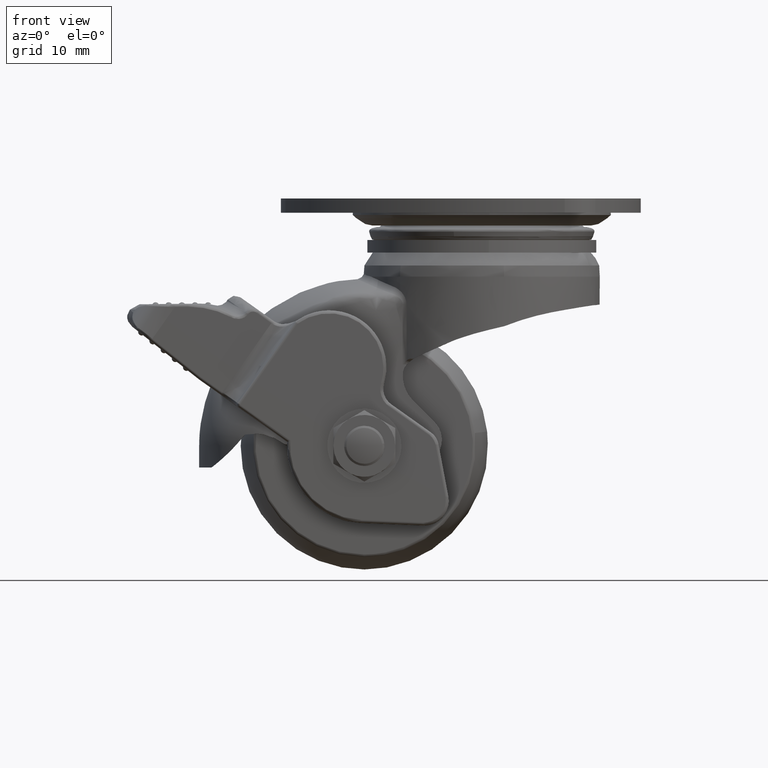
[diagram: clean part render]
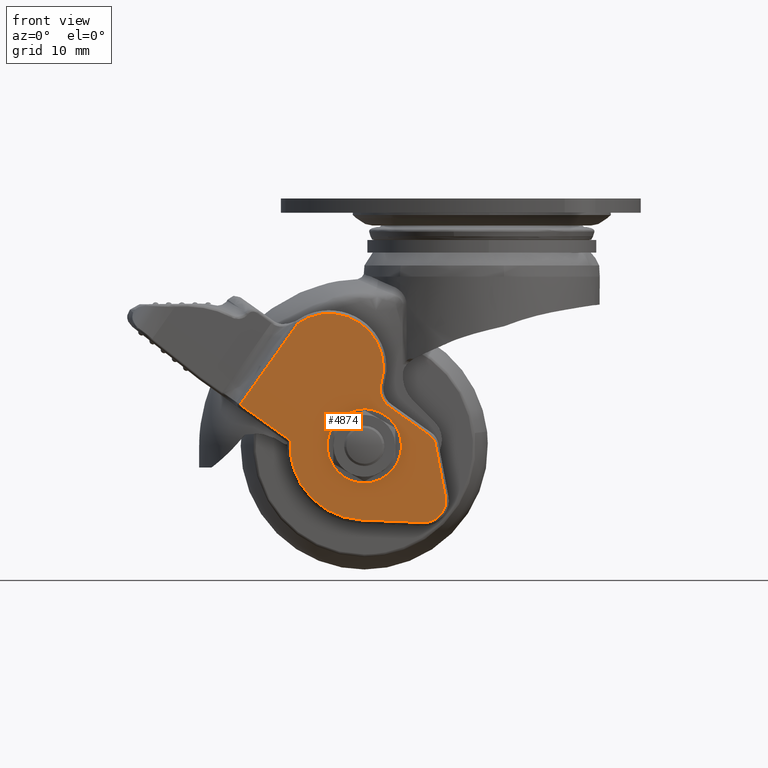
[diagram: same view with one face highlighted and labeled with its STEP entity id]
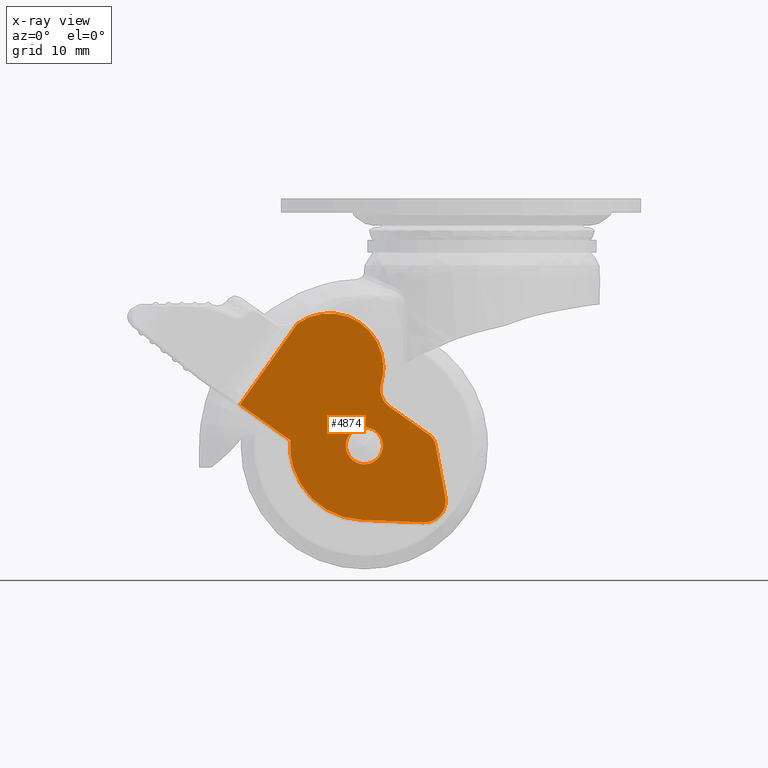
[diagram: x-ray of the same camera — body ghosted, the highlighted face saturated]
A machine part, front view. The second image highlights one B-rep face of the part: STEP entity #4874.
The next image is the same camera in x-ray: the body ghosted, the highlighted face saturated — about 0% of this face is hidden behind the body in this view.
In plain terms, the highlighted face is a freeform B-spline surface patch.
Its self-contained STEP definition (entity closure, byte-faithful):
#62=CARTESIAN_POINT('',(-19.0,-23.100000000000001,-43.0));
#63=VERTEX_POINT('',#62);
#64=CARTESIAN_POINT('',(-16.023201358547450,-23.099999999999991,-40.372384006431837));
#65=VERTEX_POINT('',#64);
#66=CARTESIAN_POINT('',(-19.0,-23.100000000000001,-43.0));
#67=CARTESIAN_POINT('',(-16.351904199894204,-23.099999999999998,-43.0));
#68=CARTESIAN_POINT('',(-16.023201358547446,-23.099999999999994,-40.372384006431837));
#76=(BOUNDED_CURVE()B_SPLINE_CURVE(2,(#66,#67,#68),.UNSPECIFIED.,.F.,.U.)B_SPLINE_CURVE_WITH_KNOTS((3,3),(0.500000000000000,0.728526071007504),.UNSPECIFIED.)CURVE()GEOMETRIC_REPRESENTATION_ITEM()RATIONAL_B_SPLINE_CURVE((1.0,0.732265053919282,0.954005430232424))REPRESENTATION_ITEM(''));
#77=EDGE_CURVE('',#63,#65,#76,.T.);
#118=CARTESIAN_POINT('',(-21.999885769189721,-23.099999999999991,-39.973820393184972));
#119=VERTEX_POINT('',#118);
#125=CARTESIAN_POINT('',(-21.999885769189724,-23.099999999999991,-39.973820393184958));
#126=CARTESIAN_POINT('',(-22.0,-23.099999999999998,-39.986909947217953));
#127=CARTESIAN_POINT('',(-22.0,-23.100000000000001,-40.0));
#128=CARTESIAN_POINT('',(-22.000000000000007,-23.100000000000001,-42.999999999999993));
#129=CARTESIAN_POINT('',(-19.0,-23.100000000000001,-43.0));
#137=(BOUNDED_CURVE()B_SPLINE_CURVE(2,(#125,#126,#127,#128,#129),.UNSPECIFIED.,.F.,.U.)B_SPLINE_CURVE_WITH_KNOTS((3,2,3),(0.248460105627444,0.250000000000000,0.500000000000000),.UNSPECIFIED.)CURVE()GEOMETRIC_REPRESENTATION_ITEM()RATIONAL_B_SPLINE_CURVE((0.996414028013461,0.998195901522358,1.0,0.707106781186548,1.0))REPRESENTATION_ITEM(''));
#138=EDGE_CURVE('',#119,#63,#137,.T.);
#165=CARTESIAN_POINT('',(-19.0,-23.100000000000001,-37.0));
#166=VERTEX_POINT('',#165);
#167=CARTESIAN_POINT('',(-16.023201358547443,-23.099999999999994,-40.372384006431837));
#168=CARTESIAN_POINT('',(-16.000000000000004,-23.099999999999998,-40.186914782795078));
#169=CARTESIAN_POINT('',(-16.0,-23.100000000000001,-40.0));
#170=CARTESIAN_POINT('',(-15.999999999999998,-23.100000000000001,-37.0));
#171=CARTESIAN_POINT('',(-19.0,-23.100000000000001,-37.0));
#179=(BOUNDED_CURVE()B_SPLINE_CURVE(2,(#167,#168,#169,#170,#171),.UNSPECIFIED.,.F.,.U.)B_SPLINE_CURVE_WITH_KNOTS((3,2,3),(0.728526071007504,0.750000000000000,1.0),.UNSPECIFIED.)CURVE()GEOMETRIC_REPRESENTATION_ITEM()RATIONAL_B_SPLINE_CURVE((0.954005430232424,0.974841727267265,1.0,0.707106781186548,1.0))REPRESENTATION_ITEM(''));
#180=EDGE_CURVE('',#65,#166,#179,.T.);
#182=CARTESIAN_POINT('',(-19.0,-23.100000000000001,-37.0));
#183=CARTESIAN_POINT('',(-21.973933631150619,-23.099999999999994,-36.999999999999993));
#184=CARTESIAN_POINT('',(-21.999885769189721,-23.099999999999998,-39.973820393184958));
#192=(BOUNDED_CURVE()B_SPLINE_CURVE(2,(#182,#183,#184),.UNSPECIFIED.,.F.,.U.)B_SPLINE_CURVE_WITH_KNOTS((3,3),(0.0,0.248460105627444),.UNSPECIFIED.)CURVE()GEOMETRIC_REPRESENTATION_ITEM()RATIONAL_B_SPLINE_CURVE((1.0,0.708910879664190,0.996414028013462))REPRESENTATION_ITEM(''));
#193=EDGE_CURVE('',#166,#119,#192,.T.);
#2476=CARTESIAN_POINT('',(-29.828835574889901,-23.100000000000001,-20.268783525676248));
#2477=VERTEX_POINT('',#2476);
#3605=CARTESIAN_POINT('',(-39.101973689525352,-23.100000000000001,-33.347364913410800));
#3606=VERTEX_POINT('',#3605);
#4202=CARTESIAN_POINT('',(-30.967327011338352,-23.100000000000001,-39.115093073234902));
#4203=VERTEX_POINT('',#4202);
#4227=CARTESIAN_POINT('',(-30.967327011338352,-23.100000000000001,-39.115093073234902));
#4228=CARTESIAN_POINT('',(-39.101973689525352,-23.100000000000001,-33.347364913410800));
#4229=QUASI_UNIFORM_CURVE('',1,(#4227,#4228),.UNSPECIFIED.,.F.,.U.);
#4230=EDGE_CURVE('',#4203,#3606,#4229,.T.);
#4253=CARTESIAN_POINT('',(-19.489507180220301,-23.100000000000001,-51.990012162655603));
#4254=VERTEX_POINT('',#4253);
#4270=CARTESIAN_POINT('',(-19.489507180220301,-23.100000000000001,-51.990012162655603));
#4271=CARTESIAN_POINT('',(-24.572241554044265,-23.099999999999998,-51.782502363692352));
#4272=CARTESIAN_POINT('',(-27.957346520457019,-23.100000000000001,-47.985356936152733));
#4273=CARTESIAN_POINT('',(-31.342451486869773,-23.099999999999998,-44.188211508613129));
#4274=CARTESIAN_POINT('',(-30.967327011338341,-23.100000000000001,-39.115093073234902));
#4282=(BOUNDED_CURVE()B_SPLINE_CURVE(2,(#4270,#4271,#4272,#4273,#4274),.UNSPECIFIED.,.F.,.U.)B_SPLINE_CURVE_WITH_KNOTS((3,2,3),(0.0,0.500000000000000,1.0),.UNSPECIFIED.)CURVE()GEOMETRIC_REPRESENTATION_ITEM()RATIONAL_B_SPLINE_CURVE((1.0,0.920690445594447,1.0,0.920690445594447,1.0))REPRESENTATION_ITEM(''));
#4283=EDGE_CURVE('',#4254,#4203,#4282,.T.);
#4324=CARTESIAN_POINT('',(-39.101973689525352,-23.100000000000001,-33.347364913410800));
#4325=CARTESIAN_POINT('',(-29.828835574889901,-23.100000000000001,-20.268783525676248));
#4326=QUASI_UNIFORM_CURVE('',1,(#4324,#4325),.UNSPECIFIED.,.F.,.U.);
#4327=EDGE_CURVE('',#3606,#2477,#4326,.T.);
#4347=CARTESIAN_POINT('',(-9.485375807328280,-23.100000000000001,-52.398443776945598));
#4348=VERTEX_POINT('',#4347);
#4364=CARTESIAN_POINT('',(-9.485375807328280,-23.100000000000001,-52.398443776945598));
#4365=CARTESIAN_POINT('',(-19.489507180220301,-23.100000000000001,-51.990012162655603));
#4366=QUASI_UNIFORM_CURVE('',1,(#4364,#4365),.UNSPECIFIED.,.F.,.U.);
#4367=EDGE_CURVE('',#4348,#4254,#4366,.T.);
#4395=CARTESIAN_POINT('',(-29.795274735589551,-23.100000000000001,-20.244832835231950));
#4396=VERTEX_POINT('',#4395);
#4397=CARTESIAN_POINT('',(-29.828835574889901,-23.100000000000001,-20.268783525676259));
#4398=CARTESIAN_POINT('',(-29.811984618141359,-23.099999999999994,-20.256907020369756));
#4399=CARTESIAN_POINT('',(-29.795274735589530,-23.100000000000001,-20.244832835231978));
#4407=(BOUNDED_CURVE()B_SPLINE_CURVE(2,(#4397,#4398,#4399),.UNSPECIFIED.,.F.,.U.)CURVE()GEOMETRIC_REPRESENTATION_ITEM()QUASI_UNIFORM_CURVE()RATIONAL_B_SPLINE_CURVE((1.0,0.999982653262736,1.0))REPRESENTATION_ITEM(''));
#4408=EDGE_CURVE('',#2477,#4396,#4407,.T.);
#4461=CARTESIAN_POINT('',(-5.903029361685871,-23.100000000000001,-48.253797592212202));
#4462=VERTEX_POINT('',#4461);
#4478=CARTESIAN_POINT('',(-5.903029361685868,-23.100000000000001,-48.253797592212202));
#4479=CARTESIAN_POINT('',(-5.590683805315104,-23.099999999999998,-49.912850844805035));
#4480=CARTESIAN_POINT('',(-6.694632658596327,-23.100000000000001,-51.190080021915612));
#4481=CARTESIAN_POINT('',(-7.798581511877551,-23.099999999999998,-52.467309199026175));
#4482=CARTESIAN_POINT('',(-9.485375807328278,-23.100000000000001,-52.398443776945577));
#4490=(BOUNDED_CURVE()B_SPLINE_CURVE(2,(#4478,#4479,#4480,#4481,#4482),.UNSPECIFIED.,.F.,.U.)B_SPLINE_CURVE_WITH_KNOTS((3,2,3),(0.0,0.500000000000000,1.0),.UNSPECIFIED.)CURVE()GEOMETRIC_REPRESENTATION_ITEM()RATIONAL_B_SPLINE_CURVE((1.0,0.900698251962598,1.0,0.900698251962598,1.0))REPRESENTATION_ITEM(''));
#4491=EDGE_CURVE('',#4462,#4348,#4490,.T.);
#4537=CARTESIAN_POINT('',(-16.282066891006501,-23.100000000000001,-29.826135674610800));
#4538=VERTEX_POINT('',#4537);
#4568=CARTESIAN_POINT('',(-29.795274735589551,-23.100000000000001,-20.244832835231950));
#4569=CARTESIAN_POINT('',(-24.718763124116524,-23.099999999999998,-16.576659886383219));
#4570=CARTESIAN_POINT('',(-19.609602847270629,-23.100000000000001,-20.199220333026702));
#4571=CARTESIAN_POINT('',(-14.500442570424719,-23.099999999999998,-23.821780779670185));
#4572=CARTESIAN_POINT('',(-16.282066891006501,-23.100000000000001,-29.826135674610800));
#4580=(BOUNDED_CURVE()B_SPLINE_CURVE(2,(#4568,#4569,#4570,#4571,#4572),.UNSPECIFIED.,.F.,.U.)B_SPLINE_CURVE_WITH_KNOTS((3,2,3),(0.0,0.500000000000000,1.0),.UNSPECIFIED.)CURVE()GEOMETRIC_REPRESENTATION_ITEM()RATIONAL_B_SPLINE_CURVE((1.0,0.813157123588817,1.0,0.813157123588817,1.0))REPRESENTATION_ITEM(''));
#4581=EDGE_CURVE('',#4396,#4538,#4580,.T.);
#4600=CARTESIAN_POINT('',(-7.489412687896691,-23.100000000000001,-39.827570560669947));
#4601=VERTEX_POINT('',#4600);
#4617=CARTESIAN_POINT('',(-7.489412687896691,-23.100000000000001,-39.827570560669947));
#4618=CARTESIAN_POINT('',(-5.903029361685871,-23.100000000000001,-48.253797592212202));
#4619=QUASI_UNIFORM_CURVE('',1,(#4617,#4618),.UNSPECIFIED.,.F.,.U.);
#4620=EDGE_CURVE('',#4601,#4462,#4619,.T.);
#4650=CARTESIAN_POINT('',(-14.951052637639320,-23.100000000000001,-33.676901883417848));
#4651=VERTEX_POINT('',#4650);
#4681=CARTESIAN_POINT('',(-16.282066891006501,-23.100000000000001,-29.826135674610800));
#4682=CARTESIAN_POINT('',(-16.994716837637132,-23.100000000000001,-32.227877666698738));
#4683=CARTESIAN_POINT('',(-14.951052637639330,-23.100000000000001,-33.676901883417877));
#4691=(BOUNDED_CURVE()B_SPLINE_CURVE(2,(#4681,#4682,#4683),.UNSPECIFIED.,.F.,.U.)CURVE()GEOMETRIC_REPRESENTATION_ITEM()QUASI_UNIFORM_CURVE()RATIONAL_B_SPLINE_CURVE((1.0,0.813157113161406,1.0))REPRESENTATION_ITEM(''));
#4692=EDGE_CURVE('',#4538,#4651,#4691,.T.);
#4714=CARTESIAN_POINT('',(-8.500258442549541,-23.100000000000001,-38.250723752307003));
#4715=VERTEX_POINT('',#4714);
#4731=CARTESIAN_POINT('',(-8.500258442549541,-23.100000000000001,-38.250723752307003));
#4732=CARTESIAN_POINT('',(-7.676292015522292,-23.099999999999994,-38.834943176000827));
#4733=CARTESIAN_POINT('',(-7.489412687896697,-23.100000000000001,-39.827570560669947));
#4741=(BOUNDED_CURVE()B_SPLINE_CURVE(2,(#4731,#4732,#4733),.UNSPECIFIED.,.F.,.U.)CURVE()GEOMETRIC_REPRESENTATION_ITEM()QUASI_UNIFORM_CURVE()RATIONAL_B_SPLINE_CURVE((1.0,0.927183818658847,1.0))REPRESENTATION_ITEM(''));
#4742=EDGE_CURVE('',#4715,#4601,#4741,.T.);
#4776=CARTESIAN_POINT('',(-14.951052637639320,-23.100000000000001,-33.676901883417848));
#4777=CARTESIAN_POINT('',(-8.500258442549541,-23.100000000000001,-38.250723752307003));
#4778=QUASI_UNIFORM_CURVE('',1,(#4776,#4777),.UNSPECIFIED.,.F.,.U.);
#4779=EDGE_CURVE('',#4651,#4715,#4778,.T.);
#4850=CARTESIAN_POINT('',(-40.763276628077278,-23.100000000000001,-54.089411891069311));
#4851=CARTESIAN_POINT('',(-4.181370122918515,-23.100000000000001,-54.089411891069311));
#4852=CARTESIAN_POINT('',(-40.763276628077278,-23.100000000000001,-16.904355306833811));
#4853=CARTESIAN_POINT('',(-4.181370122918515,-23.100000000000001,-16.904355306833811));
#4854=B_SPLINE_SURFACE_WITH_KNOTS('',1,1,((#4850,#4852),(#4851,#4853)),.UNSPECIFIED.,.F.,.F.,.U.,(2,2),(2,2),(0.0,36.581906505158763),(0.0,37.185056584235497),.UNSPECIFIED.);
#4855=ORIENTED_EDGE('',*,*,#4283,.F.);
#4856=ORIENTED_EDGE('',*,*,#4367,.F.);
#4857=ORIENTED_EDGE('',*,*,#4491,.F.);
#4858=ORIENTED_EDGE('',*,*,#4620,.F.);
#4859=ORIENTED_EDGE('',*,*,#4742,.F.);
#4860=ORIENTED_EDGE('',*,*,#4779,.F.);
#4861=ORIENTED_EDGE('',*,*,#4692,.F.);
#4862=ORIENTED_EDGE('',*,*,#4581,.F.);
#4863=ORIENTED_EDGE('',*,*,#4408,.F.);
#4864=ORIENTED_EDGE('',*,*,#4327,.F.);
#4865=ORIENTED_EDGE('',*,*,#4230,.F.);
#4866=EDGE_LOOP('',(#4855,#4856,#4857,#4858,#4859,#4860,#4861,#4862,#4863,#4864,#4865));
#4867=FACE_OUTER_BOUND('',#4866,.T.);
#4868=ORIENTED_EDGE('',*,*,#193,.F.);
#4869=ORIENTED_EDGE('',*,*,#180,.F.);
#4870=ORIENTED_EDGE('',*,*,#77,.F.);
#4871=ORIENTED_EDGE('',*,*,#138,.F.);
#4872=EDGE_LOOP('',(#4868,#4869,#4870,#4871));
#4873=FACE_BOUND('',#4872,.T.);
#4874=ADVANCED_FACE('',(#4867,#4873),#4854,.T.);